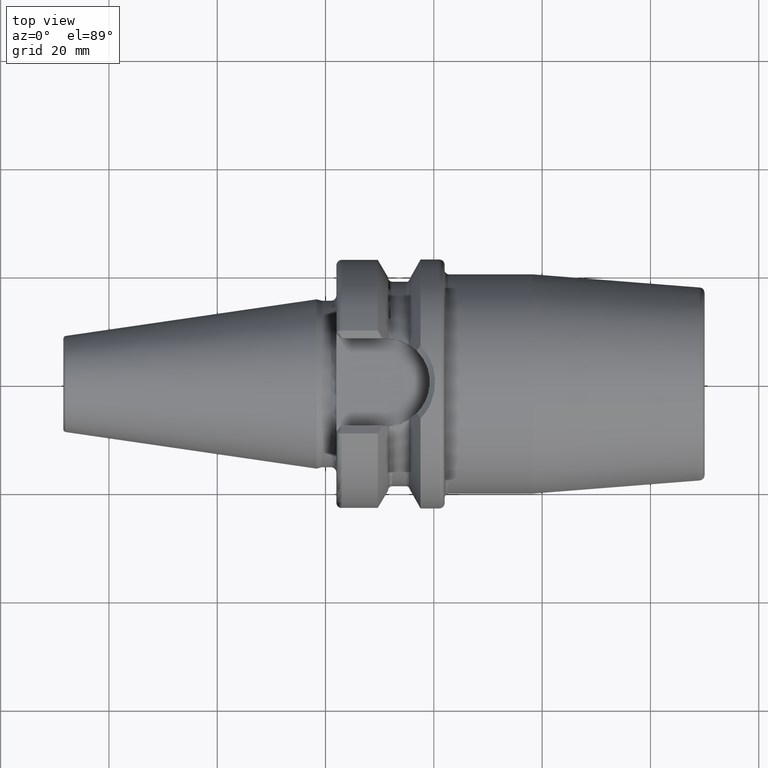
[diagram: clean part render]
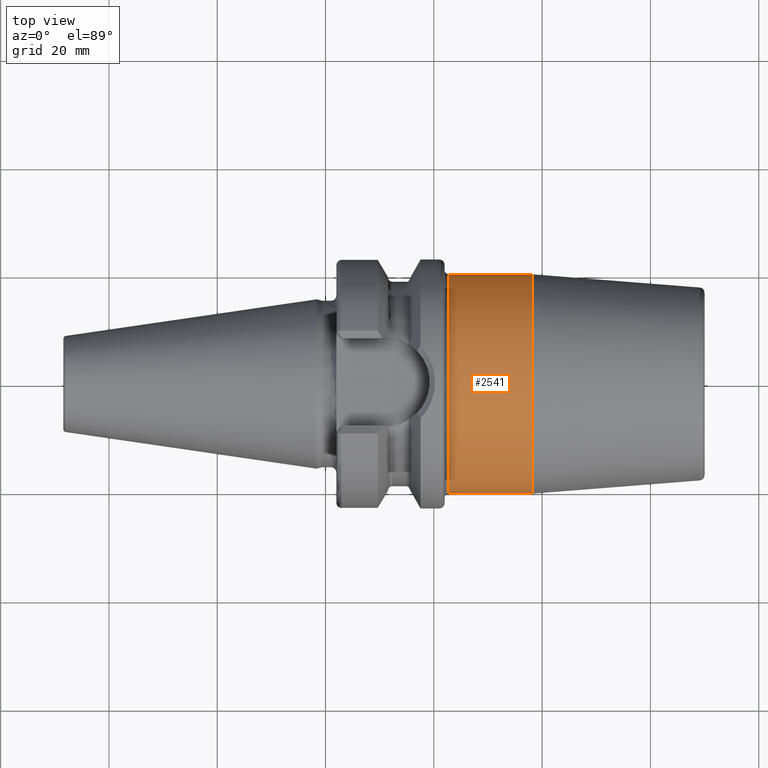
[diagram: same view with one face highlighted and labeled with its STEP entity id]
A machine part, top view. The second image highlights one B-rep face of the part: STEP entity #2541.
In plain terms, the highlighted cylindrical surface (partial cylindrical patch) has radius 20.25 mm, axis along (1, 0, 0).
Its self-contained STEP definition (entity closure, byte-faithful):
#842=CARTESIAN_POINT('',(2.28E1,0.E0,0.E0));
#843=DIRECTION('',(1.E0,0.E0,0.E0));
#844=DIRECTION('',(0.E0,1.E0,0.E0));
#845=AXIS2_PLACEMENT_3D('',#842,#843,#844);
#847=CARTESIAN_POINT('',(3.823448815956E1,0.E0,0.E0));
#848=DIRECTION('',(1.E0,0.E0,0.E0));
#849=DIRECTION('',(0.E0,1.E0,0.E0));
#850=AXIS2_PLACEMENT_3D('',#847,#848,#849);
#857=DIRECTION('',(-1.E0,0.E0,-7.995869286563E-14));
#858=VECTOR('',#857,1.543448815956E1);
#859=CARTESIAN_POINT('',(3.823448815956E1,-2.025E1,0.E0));
#860=LINE('',#859,#858);
#866=DIRECTION('',(-1.E0,0.E0,7.991852454675E-14));
#867=VECTOR('',#866,1.543448815956E1);
#868=CARTESIAN_POINT('',(3.823448815956E1,2.025E1,0.E0));
#869=LINE('',#868,#867);
#1383=CARTESIAN_POINT('',(3.823448815956E1,2.025E1,0.E0));
#1384=CARTESIAN_POINT('',(3.823448815956E1,-2.025E1,0.E0));
#1385=VERTEX_POINT('',#1383);
#1386=VERTEX_POINT('',#1384);
#1391=CARTESIAN_POINT('',(2.28E1,-2.025E1,0.E0));
#1392=CARTESIAN_POINT('',(2.28E1,2.025E1,0.E0));
#1393=VERTEX_POINT('',#1391);
#1394=VERTEX_POINT('',#1392);
#2527=CARTESIAN_POINT('',(1.96E1,0.E0,0.E0));
#2528=DIRECTION('',(1.E0,0.E0,0.E0));
#2529=DIRECTION('',(0.E0,-1.E0,0.E0));
#2530=AXIS2_PLACEMENT_3D('',#2527,#2528,#2529);
#2531=CYLINDRICAL_SURFACE('',#2530,2.025E1);
#2532=ORIENTED_EDGE('',*,*,#2521,.F.);
#2534=ORIENTED_EDGE('',*,*,#2533,.F.);
#2536=ORIENTED_EDGE('',*,*,#2535,.T.);
#2538=ORIENTED_EDGE('',*,*,#2537,.T.);
#2539=EDGE_LOOP('',(#2532,#2534,#2536,#2538));
#2540=FACE_OUTER_BOUND('',#2539,.F.);
#2541=ADVANCED_FACE('',(#2540),#2531,.T.);
#846=CIRCLE('',#845,2.025E1);
#851=CIRCLE('',#850,2.025E1);
#2521=EDGE_CURVE('',#1394,#1393,#846,.T.);
#2533=EDGE_CURVE('',#1385,#1394,#869,.T.);
#2535=EDGE_CURVE('',#1385,#1386,#851,.T.);
#2537=EDGE_CURVE('',#1386,#1393,#860,.T.);